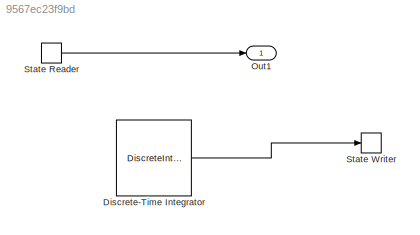
MODEL slx_9567ec23f9bd
KIND model
CONFIG AbsTol = auto
CONFIG EnableMultiTasking = off
CONFIG FixedStep = auto
CONFIG MaxStep = auto
CONFIG MinStep = auto
CONFIG RelTol = 1e-3
CONFIG SampleTimeConstraint = Unconstrained
CONFIG Solver = VariableStepAuto
CONFIG SolverName = VariableStepAuto
CONFIG StartTime = 0.0
CONFIG StopTime = 10.0
BLOCK [DiscreteIntegrator] Discrete-Time Integrator
  ICPrevOutput = DiscIntNeverNeededParam
  ICPrevScaledInput = DiscIntNeverNeededParam
  InitialConditionSetting = State (most efficient)
  Ports = [1, 1]
  SampleTime = -1
  StateName = Velocity
BLOCK [Outport] Out1
  IconDisplay = Port number
BLOCK [StateReader] State Reader
  StateOwnerBlock = ../Discrete-Time Integrator
BLOCK [StateWriter] State Writer
  StateOwnerBlock = ../Discrete-Time Integrator
LINE Discrete-Time Integrator:1 -> State Writer:1
LINE State Reader:1 -> Out1:1
